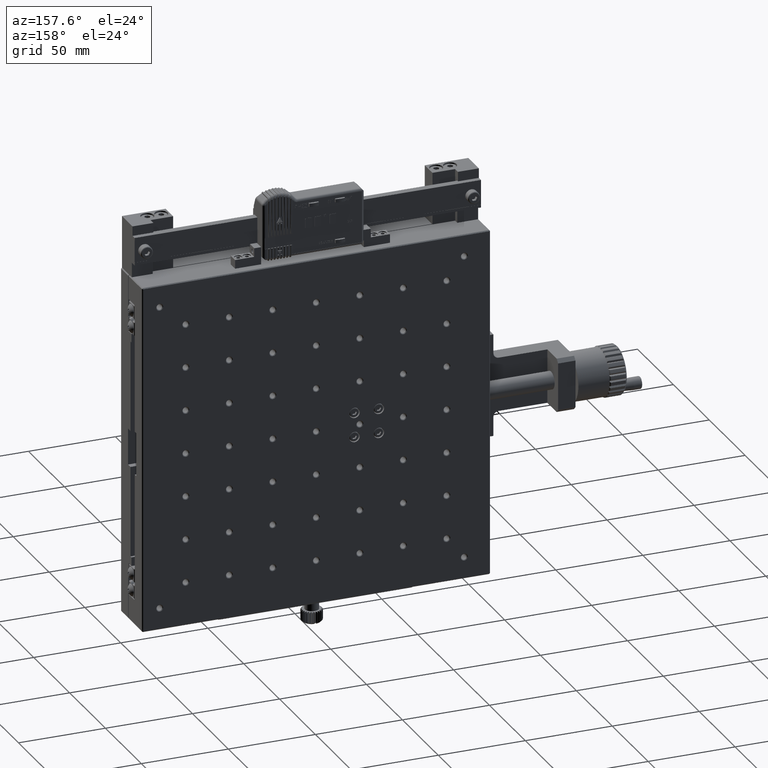
[diagram: clean part render]
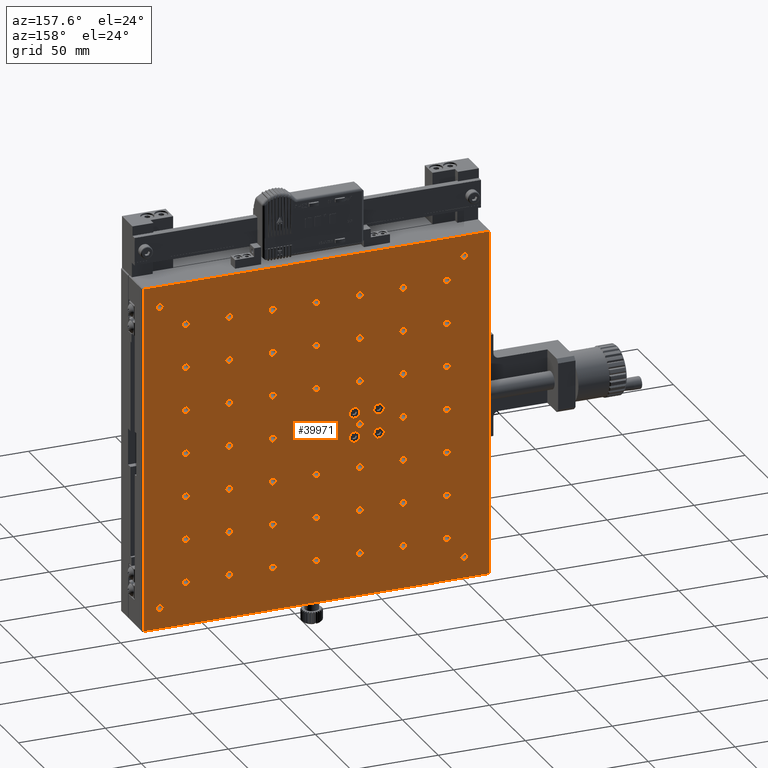
[diagram: same view with one face highlighted and labeled with its STEP entity id]
A machine part, auxiliary view. The second image highlights one B-rep face of the part: STEP entity #39971.
In plain terms, the highlighted planar face has unit normal (0, 1, 0).
Its self-contained STEP definition (entity closure, byte-faithful):
#132 = CIRCLE ( 'NONE', #12014, 1.999999999998183675 ) ;
#253 = DIRECTION ( 'NONE',  ( -0.000000000000000000, -1.000000000000000000, -0.000000000000000000 ) ) ;
#344 = CARTESIAN_POINT ( 'NONE',  ( -75.00000000000000000, 29.99999999994861355, -23.00000000002455636 ) ) ;
#822 = EDGE_CURVE ( 'NONE', #60979, #60979, #46265, .T. ) ;
#880 = CIRCLE ( 'NONE', #25637, 2.000000000009549694 ) ;
#925 = EDGE_LOOP ( 'NONE', ( #66756 ) ) ;
#945 = EDGE_LOOP ( 'NONE', ( #34316 ) ) ;
#1106 = VERTEX_POINT ( 'NONE', #42270 ) ;
#1182 = ORIENTED_EDGE ( 'NONE', *, *, #51280, .T. ) ;
#1224 = DIRECTION ( 'NONE',  ( 0.000000000000000000, 0.000000000000000000, 1.000000000000000000 ) ) ;
#1234 = CIRCLE ( 'NONE', #32500, 1.999999999998183675 ) ;
#1354 = CARTESIAN_POINT ( 'NONE',  ( -150.0000000000000000, 29.99999999994861355, 26.99999999992996891 ) ) ;
#1425 = EDGE_CURVE ( 'NONE', #29801, #29801, #35559, .T. ) ;
#1438 = EDGE_LOOP ( 'NONE', ( #41554 ) ) ;
#1450 = EDGE_LOOP ( 'NONE', ( #26154 ) ) ;
#1517 = DIRECTION ( 'NONE',  ( 0.000000000000000000, -1.000000000000000000, -0.000000000000000000 ) ) ;
#1879 = CARTESIAN_POINT ( 'NONE',  ( -25.00000000000000000, 29.99999999994861355, 76.99999999999818101 ) ) ;
#1882 = ORIENTED_EDGE ( 'NONE', *, *, #30237, .T. ) ;
#1943 = EDGE_LOOP ( 'NONE', ( #36453 ) ) ;
#1955 = CARTESIAN_POINT ( 'NONE',  ( -50.00000000000000000, 29.99999999994861355, -23.00000000002455636 ) ) ;
#2052 = CARTESIAN_POINT ( 'NONE',  ( -25.00000000000000000, 29.99999999994861355, 26.99999999992996891 ) ) ;
#2310 = EDGE_LOOP ( 'NONE', ( #52754 ) ) ;
#2528 = DIRECTION ( 'NONE',  ( 0.000000000000000000, -1.000000000000000000, -0.000000000000000000 ) ) ;
#2600 = ORIENTED_EDGE ( 'NONE', *, *, #29761, .T. ) ;
#2782 = CARTESIAN_POINT ( 'NONE',  ( -50.00000000000000000, 29.99999999994861355, 75.00000000000000000 ) ) ;
#3156 = VECTOR ( 'NONE', #42263, 1000.000000000000000 ) ;
#3259 = FACE_BOUND ( 'NONE', #54500, .T. ) ;
#3284 = ORIENTED_EDGE ( 'NONE', *, *, #6404, .T. ) ;
#3455 = CIRCLE ( 'NONE', #41167, 1.999999999929967576 ) ;
#3498 = DIRECTION ( 'NONE',  ( 0.000000000000000000, -1.000000000000000000, -0.000000000000000000 ) ) ;
#3517 = VERTEX_POINT ( 'NONE', #30489 ) ;
#3558 = DIRECTION ( 'NONE',  ( 0.000000000000000000, 0.000000000000000000, 1.000000000000000000 ) ) ;
#3573 = FACE_BOUND ( 'NONE', #62969, .T. ) ;
#3580 = ORIENTED_EDGE ( 'NONE', *, *, #30066, .T. ) ;
#3582 = CIRCLE ( 'NONE', #65044, 2.000000000020915714 ) ;
#3738 = CARTESIAN_POINT ( 'NONE',  ( -199.5000000000000000, 30.00000000000000000, -100.0000000000000000 ) ) ;
#3845 = CARTESIAN_POINT ( 'NONE',  ( -150.0000000000000000, 30.00000000000545697, 52.00000000002091838 ) ) ;
#3912 = FACE_BOUND ( 'NONE', #51014, .T. ) ;
#4224 = CARTESIAN_POINT ( 'NONE',  ( -75.00000000000000000, 29.99999999994861355, -25.00000000000000000 ) ) ;
#4243 = FACE_BOUND ( 'NONE', #54610, .T. ) ;
#4340 = AXIS2_PLACEMENT_3D ( 'NONE', #31908, #56922, #57923 ) ;
#4503 = VERTEX_POINT ( 'NONE', #25746 ) ;
#4518 = VERTEX_POINT ( 'NONE', #3845 ) ;
#4557 = DIRECTION ( 'NONE',  ( 0.000000000000000000, 0.000000000000000000, 1.000000000000000000 ) ) ;
#4769 = AXIS2_PLACEMENT_3D ( 'NONE', #11745, #253, #32303 ) ;
#4853 = EDGE_CURVE ( 'NONE', #7333, #7333, #36663, .T. ) ;
#4886 = CARTESIAN_POINT ( 'NONE',  ( -75.00000000000000000, 30.00000000006230039, 0.000000000000000000 ) ) ;
#5007 = VERTEX_POINT ( 'NONE', #9073 ) ;
#5040 = AXIS2_PLACEMENT_3D ( 'NONE', #37438, #15529, #21902 ) ;
#5077 = DIRECTION ( 'NONE',  ( 0.000000000000000000, -1.000000000000000000, -0.000000000000000000 ) ) ;
#5190 = CARTESIAN_POINT ( 'NONE',  ( -75.00000000000000000, 29.99999999994861355, -48.00000000005866241 ) ) ;
#5283 = DIRECTION ( 'NONE',  ( 0.000000000000000000, -1.000000000000000000, -0.000000000000000000 ) ) ;
#5370 = EDGE_CURVE ( 'NONE', #25487, #19955, #49989, .T. ) ;
#5424 = CARTESIAN_POINT ( 'NONE',  ( -10.00000000000000000, 29.99999999994861355, -87.50000000000001421 ) ) ;
#5783 = DIRECTION ( 'NONE',  ( 0.000000000000000000, 0.000000000000000000, 1.000000000000000000 ) ) ;
#5933 = EDGE_CURVE ( 'NONE', #36549, #36549, #41719, .T. ) ;
#6085 = DIRECTION ( 'NONE',  ( 0.000000000000000000, 0.000000000000000000, 1.000000000000000000 ) ) ;
#6122 = CIRCLE ( 'NONE', #23375, 3.000000000000000000 ) ;
#6404 = EDGE_CURVE ( 'NONE', #4503, #4503, #38341, .T. ) ;
#6425 = AXIS2_PLACEMENT_3D ( 'NONE', #65569, #59824, #34493 ) ;
#6935 = CIRCLE ( 'NONE', #15580, 1.999999999941340256 ) ;
#7040 = CIRCLE ( 'NONE', #10271, 1.999999999975444975 ) ;
#7056 = DIRECTION ( 'NONE',  ( 0.000000000000000000, 0.000000000000000000, 1.000000000000000000 ) ) ;
#7175 = VERTEX_POINT ( 'NONE', #63896 ) ;
#7198 = ORIENTED_EDGE ( 'NONE', *, *, #9297, .T. ) ;
#7333 = VERTEX_POINT ( 'NONE', #19370 ) ;
#7428 = CARTESIAN_POINT ( 'NONE',  ( -125.0000000000000000, 29.99999999994861355, -23.00000000002455636 ) ) ;
#7483 = AXIS2_PLACEMENT_3D ( 'NONE', #61669, #5283, #31919 ) ;
#7491 = DIRECTION ( 'NONE',  ( 0.000000000000000000, -1.000000000000000000, -0.000000000000000000 ) ) ;
#7603 = VERTEX_POINT ( 'NONE', #28177 ) ;
#7615 = DIRECTION ( 'NONE',  ( 0.000000000000000000, -1.000000000000000000, -0.000000000000000000 ) ) ;
#7951 = ORIENTED_EDGE ( 'NONE', *, *, #20838, .T. ) ;
#7990 = DIRECTION ( 'NONE',  ( 0.000000000000000000, -0.000000000000000000, 1.000000000000000000 ) ) ;
#8326 = FACE_BOUND ( 'NONE', #925, .T. ) ;
#8408 = CIRCLE ( 'NONE', #17034, 1.999999999998183675 ) ;
#8496 = ORIENTED_EDGE ( 'NONE', *, *, #50769, .T. ) ;
#8589 = ORIENTED_EDGE ( 'NONE', *, *, #60743, .T. ) ;
#8669 = FACE_BOUND ( 'NONE', #55783, .T. ) ;
#8719 = EDGE_LOOP ( 'NONE', ( #8589 ) ) ;
#8871 = AXIS2_PLACEMENT_3D ( 'NONE', #24727, #13284, #55443 ) ;
#8978 = FACE_BOUND ( 'NONE', #57966, .T. ) ;
#9073 = CARTESIAN_POINT ( 'NONE',  ( -75.00000000000000000, 29.99999999994861355, -73.00000000003592504 ) ) ;
#9242 = AXIS2_PLACEMENT_3D ( 'NONE', #5424, #19615, #19288 ) ;
#9282 = CARTESIAN_POINT ( 'NONE',  ( -50.00000000000000000, 30.00000000000545697, 50.00000000000000000 ) ) ;
#9295 = DIRECTION ( 'NONE',  ( 0.000000000000000000, -1.000000000000000000, -0.000000000000000000 ) ) ;
#9297 = EDGE_CURVE ( 'NONE', #12587, #12587, #880, .T. ) ;
#9314 = FACE_BOUND ( 'NONE', #58074, .T. ) ;
#9820 = CARTESIAN_POINT ( 'NONE',  ( -185.0000000000000000, 30.00000000006230039, 87.50000000000001421 ) ) ;
#9882 = EDGE_CURVE ( 'NONE', #7175, #7175, #56986, .T. ) ;
#10081 = CARTESIAN_POINT ( 'NONE',  ( -75.00000000000000000, 30.00000000006230039, 2.000000000009549694 ) ) ;
#10134 = DIRECTION ( 'NONE',  ( 0.000000000000000000, 0.000000000000000000, 1.000000000000000000 ) ) ;
#10255 = CARTESIAN_POINT ( 'NONE',  ( -136.0000000000000000, 30.00000000000000000, 10.00000000000000000 ) ) ;
#10271 = AXIS2_PLACEMENT_3D ( 'NONE', #4224, #9295, #4557 ) ;
#10292 = AXIS2_PLACEMENT_3D ( 'NONE', #53370, #58781, #37507 ) ;
#10310 = ORIENTED_EDGE ( 'NONE', *, *, #28196, .T. ) ;
#10404 = ORIENTED_EDGE ( 'NONE', *, *, #4853, .T. ) ;
#10415 = CARTESIAN_POINT ( 'NONE',  ( -175.0000000000000284, 29.99999999994861355, -73.00000000003592504 ) ) ;
#10460 = CARTESIAN_POINT ( 'NONE',  ( -125.0000000000000000, 29.99999999994861355, -25.00000000000000000 ) ) ;
#10629 = CIRCLE ( 'NONE', #13903, 2.000000000020915714 ) ;
#10637 = DIRECTION ( 'NONE',  ( 0.000000000000000000, 0.000000000000000000, 1.000000000000000000 ) ) ;
#10752 = ORIENTED_EDGE ( 'NONE', *, *, #11757, .T. ) ;
#10877 = CARTESIAN_POINT ( 'NONE',  ( -175.0000000000000284, 29.99999999994861355, -25.00000000000000000 ) ) ;
#10912 = EDGE_LOOP ( 'NONE', ( #25741 ) ) ;
#11030 = CIRCLE ( 'NONE', #51987, 2.000000000009549694 ) ;
#11125 = AXIS2_PLACEMENT_3D ( 'NONE', #57282, #27539, #21810 ) ;
#11223 = CIRCLE ( 'NONE', #46771, 1.999999999998183675 ) ;
#11251 = EDGE_LOOP ( 'NONE', ( #21263 ) ) ;
#11405 = AXIS2_PLACEMENT_3D ( 'NONE', #59759, #45218, #34086 ) ;
#11427 = CARTESIAN_POINT ( 'NONE',  ( -136.0000000000000000, 30.00000000000000000, 7.000000000000000000 ) ) ;
#11745 = CARTESIAN_POINT ( 'NONE',  ( -122.0000000000000000, 30.00000000000000000, -7.000000000000000000 ) ) ;
#11757 = EDGE_CURVE ( 'NONE', #1106, #1106, #10629, .T. ) ;
#12014 = AXIS2_PLACEMENT_3D ( 'NONE', #2782, #33146, #24007 ) ;
#12121 = AXIS2_PLACEMENT_3D ( 'NONE', #41430, #42431, #27235 ) ;
#12223 = DIRECTION ( 'NONE',  ( 0.000000000000000000, -1.000000000000000000, -0.000000000000000000 ) ) ;
#12297 = CARTESIAN_POINT ( 'NONE',  ( -75.00000000000000000, 29.99999999994861355, -50.00000000000000000 ) ) ;
#12587 = VERTEX_POINT ( 'NONE', #32136 ) ;
#12662 = EDGE_LOOP ( 'NONE', ( #66597 ) ) ;
#12670 = ORIENTED_EDGE ( 'NONE', *, *, #63753, .T. ) ;
#12680 = VERTEX_POINT ( 'NONE', #44031 ) ;
#12918 = CARTESIAN_POINT ( 'NONE',  ( -175.0000000000000284, 29.99999999994861355, -23.00000000002455636 ) ) ;
#12938 = ORIENTED_EDGE ( 'NONE', *, *, #14942, .T. ) ;
#13070 = DIRECTION ( 'NONE',  ( 0.000000000000000000, 1.000000000000000000, 0.000000000000000000 ) ) ;
#13284 = DIRECTION ( 'NONE',  ( 0.000000000000000000, -1.000000000000000000, -0.000000000000000000 ) ) ;
#13387 = FACE_BOUND ( 'NONE', #19852, .T. ) ;
#13397 = AXIS2_PLACEMENT_3D ( 'NONE', #50199, #40396, #34006 ) ;
#13505 = VECTOR ( 'NONE', #32603, 1000.000000000000000 ) ;
#13639 = DIRECTION ( 'NONE',  ( 0.000000000000000000, 0.000000000000000000, 1.000000000000000000 ) ) ;
#13659 = VERTEX_POINT ( 'NONE', #39967 ) ;
#13662 = CIRCLE ( 'NONE', #43858, 3.000000000000000000 ) ;
#13665 = CARTESIAN_POINT ( 'NONE',  ( -25.00000000000000000, 29.99999999994861355, 75.00000000000000000 ) ) ;
#13719 = FACE_BOUND ( 'NONE', #1450, .T. ) ;
#13742 = VERTEX_POINT ( 'NONE', #48196 ) ;
#13771 = DIRECTION ( 'NONE',  ( 0.000000000000000000, 0.000000000000000000, 1.000000000000000000 ) ) ;
#13814 = EDGE_CURVE ( 'NONE', #19283, #19283, #61979, .T. ) ;
#13903 = AXIS2_PLACEMENT_3D ( 'NONE', #32024, #62773, #21242 ) ;
#14048 = FACE_BOUND ( 'NONE', #945, .T. ) ;
#14139 = VERTEX_POINT ( 'NONE', #10081 ) ;
#14220 = VERTEX_POINT ( 'NONE', #56399 ) ;
#14267 = DIRECTION ( 'NONE',  ( 0.000000000000000000, -1.000000000000000000, -0.000000000000000000 ) ) ;
#14335 = DIRECTION ( 'NONE',  ( 0.000000000000000000, 0.000000000000000000, 1.000000000000000000 ) ) ;
#14353 = AXIS2_PLACEMENT_3D ( 'NONE', #13665, #18066, #29170 ) ;
#14371 = FACE_BOUND ( 'NONE', #34083, .T. ) ;
#14376 = VECTOR ( 'NONE', #44920, 1000.000000000000000 ) ;
#14520 = EDGE_CURVE ( 'NONE', #43939, #43939, #56684, .T. ) ;
#14716 = CIRCLE ( 'NONE', #61070, 1.999999999964072295 ) ;
#14746 = CARTESIAN_POINT ( 'NONE',  ( -100.0000000000000000, 30.00000000006230039, 2.000000000009549694 ) ) ;
#14875 = DIRECTION ( 'NONE',  ( 0.000000000000000000, 0.000000000000000000, 1.000000000000000000 ) ) ;
#14942 = EDGE_CURVE ( 'NONE', #59150, #59150, #55660, .T. ) ;
#14945 = DIRECTION ( 'NONE',  ( 0.000000000000000000, -1.000000000000000000, -0.000000000000000000 ) ) ;
#15142 = AXIS2_PLACEMENT_3D ( 'NONE', #10460, #19246, #30359 ) ;
#15202 = CARTESIAN_POINT ( 'NONE',  ( -150.0000000000000000, 29.99999999994861355, -25.00000000000000000 ) ) ;
#15428 = CARTESIAN_POINT ( 'NONE',  ( -175.0000000000000284, 29.99999999994861355, 75.00000000000000000 ) ) ;
#15529 = DIRECTION ( 'NONE',  ( 0.000000000000000000, -1.000000000000000000, -0.000000000000000000 ) ) ;
#15560 = AXIS2_PLACEMENT_3D ( 'NONE', #43688, #65635, #19376 ) ;
#15580 = AXIS2_PLACEMENT_3D ( 'NONE', #19682, #29466, #39954 ) ;
#15629 = EDGE_CURVE ( 'NONE', #65212, #65212, #46936, .T. ) ;
#15716 = EDGE_CURVE ( 'NONE', #60138, #60138, #7040, .T. ) ;
#15725 = EDGE_LOOP ( 'NONE', ( #43609 ) ) ;
#15731 = EDGE_CURVE ( 'NONE', #14220, #14220, #45816, .T. ) ;
#15805 = EDGE_LOOP ( 'NONE', ( #65719 ) ) ;
#15933 = EDGE_LOOP ( 'NONE', ( #27019 ) ) ;
#15945 = DIRECTION ( 'NONE',  ( 0.000000000000000000, 0.000000000000000000, 1.000000000000000000 ) ) ;
#15974 = LINE ( 'NONE', #52066, #3156 ) ;
#16026 = DIRECTION ( 'NONE',  ( 0.000000000000000000, -1.000000000000000000, -0.000000000000000000 ) ) ;
#16159 = DIRECTION ( 'NONE',  ( 0.000000000000000000, 0.000000000000000000, 1.000000000000000000 ) ) ;
#16412 = ORIENTED_EDGE ( 'NONE', *, *, #14520, .T. ) ;
#16498 = ORIENTED_EDGE ( 'NONE', *, *, #31793, .T. ) ;
#16571 = DIRECTION ( 'NONE',  ( -0.000000000000000000, -1.000000000000000000, -0.000000000000000000 ) ) ;
#16649 = ORIENTED_EDGE ( 'NONE', *, *, #50034, .T. ) ;
#16688 = EDGE_LOOP ( 'NONE', ( #38549 ) ) ;
#16823 = ORIENTED_EDGE ( 'NONE', *, *, #13814, .T. ) ;
#17034 = AXIS2_PLACEMENT_3D ( 'NONE', #20649, #61515, #15945 ) ;
#17140 = FACE_OUTER_BOUND ( 'NONE', #56672, .T. ) ;
#17304 = DIRECTION ( 'NONE',  ( 0.000000000000000000, 0.000000000000000000, 1.000000000000000000 ) ) ;
#17579 = CARTESIAN_POINT ( 'NONE',  ( -175.0000000000000284, 30.00000000006230039, 2.000000000009549694 ) ) ;
#17672 = ORIENTED_EDGE ( 'NONE', *, *, #55860, .T. ) ;
#17851 = AXIS2_PLACEMENT_3D ( 'NONE', #44073, #43739, #3558 ) ;
#17869 = CIRCLE ( 'NONE', #10292, 1.999999999929967576 ) ;
#18061 = CARTESIAN_POINT ( 'NONE',  ( -25.00000000000000000, 30.00000000000545697, 52.00000000002091838 ) ) ;
#18066 = DIRECTION ( 'NONE',  ( 0.000000000000000000, -1.000000000000000000, -0.000000000000000000 ) ) ;
#18117 = FACE_BOUND ( 'NONE', #24877, .T. ) ;
#18121 = EDGE_LOOP ( 'NONE', ( #7198 ) ) ;
#18132 = EDGE_LOOP ( 'NONE', ( #17672 ) ) ;
#18225 = AXIS2_PLACEMENT_3D ( 'NONE', #36689, #46823, #42410 ) ;
#18300 = EDGE_CURVE ( 'NONE', #66213, #66213, #8408, .T. ) ;
#18457 = FACE_BOUND ( 'NONE', #52717, .T. ) ;
#18610 = DIRECTION ( 'NONE',  ( 0.000000000000000000, 0.000000000000000000, 1.000000000000000000 ) ) ;
#18733 = CIRCLE ( 'NONE', #42427, 2.000000000020915714 ) ;
#18783 = FACE_BOUND ( 'NONE', #38906, .T. ) ;
#18787 = CIRCLE ( 'NONE', #15560, 1.999999999964072295 ) ;
#18875 = VERTEX_POINT ( 'NONE', #7428 ) ;
#18883 = EDGE_LOOP ( 'NONE', ( #36302 ) ) ;
#18899 = AXIS2_PLACEMENT_3D ( 'NONE', #57786, #56207, #34928 ) ;
#18955 = CARTESIAN_POINT ( 'NONE',  ( -50.00000000000000000, 30.00000000000545697, 52.00000000002091838 ) ) ;
#19111 = FACE_BOUND ( 'NONE', #56216, .T. ) ;
#19246 = DIRECTION ( 'NONE',  ( 0.000000000000000000, -1.000000000000000000, -0.000000000000000000 ) ) ;
#19283 = VERTEX_POINT ( 'NONE', #48688 ) ;
#19288 = DIRECTION ( 'NONE',  ( 0.000000000000000000, 0.000000000000000000, 1.000000000000000000 ) ) ;
#19370 = CARTESIAN_POINT ( 'NONE',  ( -150.0000000000000000, 30.00000000006230039, 2.000000000009549694 ) ) ;
#19376 = DIRECTION ( 'NONE',  ( 0.000000000000000000, 0.000000000000000000, 1.000000000000000000 ) ) ;
#19439 = FACE_BOUND ( 'NONE', #27027, .T. ) ;
#19601 = DIRECTION ( 'NONE',  ( 0.000000000000000000, -1.000000000000000000, -0.000000000000000000 ) ) ;
#19612 = VERTEX_POINT ( 'NONE', #1354 ) ;
#19614 = EDGE_LOOP ( 'NONE', ( #20941 ) ) ;
#19615 = DIRECTION ( 'NONE',  ( 0.000000000000000000, -1.000000000000000000, -0.000000000000000000 ) ) ;
#19682 = CARTESIAN_POINT ( 'NONE',  ( -50.00000000000000000, 29.99999999994861355, -50.00000000000000000 ) ) ;
#19727 = DIRECTION ( 'NONE',  ( 0.000000000000000000, -1.000000000000000000, -0.000000000000000000 ) ) ;
#19779 = EDGE_LOOP ( 'NONE', ( #65218 ) ) ;
#19852 = EDGE_LOOP ( 'NONE', ( #10310 ) ) ;
#19955 = VERTEX_POINT ( 'NONE', #45005 ) ;
#19981 = CARTESIAN_POINT ( 'NONE',  ( -199.5000000000000000, 30.00000000000000000, -99.50000000000000000 ) ) ;
#20046 = EDGE_CURVE ( 'NONE', #51331, #51331, #6935, .T. ) ;
#20274 = ORIENTED_EDGE ( 'NONE', *, *, #18300, .T. ) ;
#20318 = CIRCLE ( 'NONE', #59184, 3.000000000000000000 ) ;
#20477 = CARTESIAN_POINT ( 'NONE',  ( -0.4999999999999848455, 30.00000000000000000, -99.50000000000001421 ) ) ;
#20501 = CARTESIAN_POINT ( 'NONE',  ( -150.0000000000000000, 29.99999999994861355, 25.00000000000000000 ) ) ;
#20537 = VERTEX_POINT ( 'NONE', #41116 ) ;
#20649 = CARTESIAN_POINT ( 'NONE',  ( -125.0000000000000000, 29.99999999994861355, 75.00000000000000000 ) ) ;
#20740 = DIRECTION ( 'NONE',  ( 0.000000000000000000, -1.000000000000000000, -0.000000000000000000 ) ) ;
#20766 = EDGE_CURVE ( 'NONE', #19612, #19612, #66321, .T. ) ;
#20838 = EDGE_CURVE ( 'NONE', #48326, #25487, #52886, .T. ) ;
#20941 = ORIENTED_EDGE ( 'NONE', *, *, #1425, .T. ) ;
#21020 = ORIENTED_EDGE ( 'NONE', *, *, #31923, .T. ) ;
#21162 = EDGE_CURVE ( 'NONE', #21610, #21610, #52279, .T. ) ;
#21242 = DIRECTION ( 'NONE',  ( 0.000000000000000000, 0.000000000000000000, 1.000000000000000000 ) ) ;
#21263 = ORIENTED_EDGE ( 'NONE', *, *, #31737, .T. ) ;
#21280 = ORIENTED_EDGE ( 'NONE', *, *, #15731, .T. ) ;
#21358 = EDGE_LOOP ( 'NONE', ( #29253 ) ) ;
#21610 = VERTEX_POINT ( 'NONE', #32724 ) ;
#21646 = EDGE_CURVE ( 'NONE', #63145, #63145, #52323, .T. ) ;
#21737 = CARTESIAN_POINT ( 'NONE',  ( -175.0000000000000284, 30.00000000006230039, 0.000000000000000000 ) ) ;
#21810 = DIRECTION ( 'NONE',  ( 0.000000000000000000, 0.000000000000000000, 1.000000000000000000 ) ) ;
#21902 = DIRECTION ( 'NONE',  ( 0.000000000000000000, 0.000000000000000000, 1.000000000000000000 ) ) ;
#21935 = CARTESIAN_POINT ( 'NONE',  ( -100.0000000000000000, 29.99999999994861355, 26.99999999992996891 ) ) ;
#22342 = EDGE_LOOP ( 'NONE', ( #28570 ) ) ;
#22485 = CARTESIAN_POINT ( 'NONE',  ( -0.4999999999999690248, 30.00000000000000000, 99.50000000000000000 ) ) ;
#22786 = VERTEX_POINT ( 'NONE', #1879 ) ;
#22820 = CARTESIAN_POINT ( 'NONE',  ( -200.0000000000000000, 30.00000000000000000, -99.50000000000000000 ) ) ;
#23069 = AXIS2_PLACEMENT_3D ( 'NONE', #38043, #54582, #23500 ) ;
#23154 = AXIS2_PLACEMENT_3D ( 'NONE', #30196, #20740, #10637 ) ;
#23283 = CIRCLE ( 'NONE', #62144, 2.000000000020915714 ) ;
#23375 = AXIS2_PLACEMENT_3D ( 'NONE', #27336, #16571, #6085 ) ;
#23500 = DIRECTION ( 'NONE',  ( 0.000000000000000000, 0.000000000000000000, 1.000000000000000000 ) ) ;
#23827 = FACE_BOUND ( 'NONE', #32984, .T. ) ;
#24007 = DIRECTION ( 'NONE',  ( 0.000000000000000000, 0.000000000000000000, 1.000000000000000000 ) ) ;
#24090 = CARTESIAN_POINT ( 'NONE',  ( -75.00000000000000000, 29.99999999994861355, 25.00000000000000000 ) ) ;
#24101 = CIRCLE ( 'NONE', #35954, 1.999999999929967576 ) ;
#24124 = DIRECTION ( 'NONE',  ( -0.000000000000000000, -1.000000000000000000, -0.000000000000000000 ) ) ;
#24155 = FACE_BOUND ( 'NONE', #59977, .T. ) ;
#24493 = FACE_BOUND ( 'NONE', #53428, .T. ) ;
#24593 = CARTESIAN_POINT ( 'NONE',  ( -75.00000000000000000, 30.00000000000545697, 52.00000000002091838 ) ) ;
#24727 = CARTESIAN_POINT ( 'NONE',  ( -175.0000000000000284, 29.99999999994861355, -75.00000000000000000 ) ) ;
#24845 = VERTEX_POINT ( 'NONE', #61312 ) ;
#24877 = EDGE_LOOP ( 'NONE', ( #24913 ) ) ;
#24913 = ORIENTED_EDGE ( 'NONE', *, *, #36568, .T. ) ;
#25062 = EDGE_CURVE ( 'NONE', #63824, #63824, #20318, .T. ) ;
#25243 = ORIENTED_EDGE ( 'NONE', *, *, #5933, .T. ) ;
#25480 = EDGE_LOOP ( 'NONE', ( #12938 ) ) ;
#25487 = VERTEX_POINT ( 'NONE', #19981 ) ;
#25529 = DIRECTION ( 'NONE',  ( 0.000000000000000000, -1.000000000000000000, -0.000000000000000000 ) ) ;
#25580 = VERTEX_POINT ( 'NONE', #61048 ) ;
#25637 = AXIS2_PLACEMENT_3D ( 'NONE', #66261, #14945, #51045 ) ;
#25679 = DIRECTION ( 'NONE',  ( 0.000000000000000000, -1.000000000000000000, -0.000000000000000000 ) ) ;
#25741 = ORIENTED_EDGE ( 'NONE', *, *, #54578, .T. ) ;
#25746 = CARTESIAN_POINT ( 'NONE',  ( -10.00000000000000000, 29.99999999994861355, -85.50000000002455636 ) ) ;
#25983 = AXIS2_PLACEMENT_3D ( 'NONE', #66084, #49884, #44158 ) ;
#26154 = ORIENTED_EDGE ( 'NONE', *, *, #28590, .T. ) ;
#26320 = EDGE_CURVE ( 'NONE', #59074, #59074, #52719, .T. ) ;
#26445 = EDGE_LOOP ( 'NONE', ( #36133 ) ) ;
#26936 = EDGE_CURVE ( 'NONE', #19955, #58734, #36112, .T. ) ;
#27019 = ORIENTED_EDGE ( 'NONE', *, *, #43718, .T. ) ;
#27027 = EDGE_LOOP ( 'NONE', ( #16823 ) ) ;
#27040 = DIRECTION ( 'NONE',  ( 0.000000000000000000, -1.000000000000000000, -0.000000000000000000 ) ) ;
#27235 = DIRECTION ( 'NONE',  ( 0.000000000000000000, 0.000000000000000000, 1.000000000000000000 ) ) ;
#27329 = EDGE_LOOP ( 'NONE', ( #66387 ) ) ;
#27336 = CARTESIAN_POINT ( 'NONE',  ( -136.0000000000000000, 30.00000000000000000, -7.000000000000000000 ) ) ;
#27539 = DIRECTION ( 'NONE',  ( 0.000000000000000000, -1.000000000000000000, -0.000000000000000000 ) ) ;
#27853 = CARTESIAN_POINT ( 'NONE',  ( -100.0000000000000000, 29.99999999994861355, 76.99999999999818101 ) ) ;
#27929 = VERTEX_POINT ( 'NONE', #1955 ) ;
#28006 = CARTESIAN_POINT ( 'NONE',  ( -25.00000000000000000, 29.99999999994861355, -48.00000000005866241 ) ) ;
#28177 = CARTESIAN_POINT ( 'NONE',  ( -150.0000000000000000, 29.99999999994861355, -73.00000000003592504 ) ) ;
#28196 = EDGE_CURVE ( 'NONE', #18875, #18875, #55036, .T. ) ;
#28570 = ORIENTED_EDGE ( 'NONE', *, *, #40272, .T. ) ;
#28590 = EDGE_CURVE ( 'NONE', #48611, #48611, #41051, .T. ) ;
#28833 = VERTEX_POINT ( 'NONE', #18061 ) ;
#28884 = EDGE_LOOP ( 'NONE', ( #16412 ) ) ;
#28894 = FACE_BOUND ( 'NONE', #28884, .T. ) ;
#29170 = DIRECTION ( 'NONE',  ( 0.000000000000000000, 0.000000000000000000, 1.000000000000000000 ) ) ;
#29221 = FACE_BOUND ( 'NONE', #15933, .T. ) ;
#29235 = EDGE_LOOP ( 'NONE', ( #39377 ) ) ;
#29253 = ORIENTED_EDGE ( 'NONE', *, *, #52554, .T. ) ;
#29268 = DIRECTION ( 'NONE',  ( 0.000000000000000000, -1.000000000000000000, -0.000000000000000000 ) ) ;
#29279 = CARTESIAN_POINT ( 'NONE',  ( -100.0000000000000000, 29.99999999994861355, 75.00000000000000000 ) ) ;
#29466 = DIRECTION ( 'NONE',  ( 0.000000000000000000, -1.000000000000000000, -0.000000000000000000 ) ) ;
#29546 = FACE_BOUND ( 'NONE', #18883, .T. ) ;
#29621 = AXIS2_PLACEMENT_3D ( 'NONE', #9820, #19601, #55718 ) ;
#29761 = EDGE_CURVE ( 'NONE', #14139, #14139, #11030, .T. ) ;
#29801 = VERTEX_POINT ( 'NONE', #53918 ) ;
#29879 = FACE_BOUND ( 'NONE', #18121, .T. ) ;
#29946 = DIRECTION ( 'NONE',  ( 0.000000000000000000, -1.000000000000000000, -0.000000000000000000 ) ) ;
#30013 = AXIS2_PLACEMENT_3D ( 'NONE', #15202, #35762, #10134 ) ;
#30066 = EDGE_CURVE ( 'NONE', #45513, #45513, #45519, .T. ) ;
#30196 = CARTESIAN_POINT ( 'NONE',  ( -100.0000000000000000, 29.99999999994861355, -25.00000000000000000 ) ) ;
#30237 = EDGE_CURVE ( 'NONE', #66126, #66126, #62836, .T. ) ;
#30359 = DIRECTION ( 'NONE',  ( 0.000000000000000000, 0.000000000000000000, 1.000000000000000000 ) ) ;
#30439 = CARTESIAN_POINT ( 'NONE',  ( -25.00000000000000000, 29.99999999994861355, -75.00000000000000000 ) ) ;
#30489 = CARTESIAN_POINT ( 'NONE',  ( -125.0000000000000000, 29.99999999994861355, 26.99999999992996891 ) ) ;
#30513 = ORIENTED_EDGE ( 'NONE', *, *, #53488, .T. ) ;
#30545 = ORIENTED_EDGE ( 'NONE', *, *, #61280, .T. ) ;
#30550 = EDGE_LOOP ( 'NONE', ( #63225 ) ) ;
#30818 = VERTEX_POINT ( 'NONE', #32739 ) ;
#31161 = VERTEX_POINT ( 'NONE', #5190 ) ;
#31373 = EDGE_LOOP ( 'NONE', ( #16649 ) ) ;
#31406 = EDGE_CURVE ( 'NONE', #55308, #55308, #18733, .T. ) ;
#31486 = VERTEX_POINT ( 'NONE', #38153 ) ;
#31532 = AXIS2_PLACEMENT_3D ( 'NONE', #37861, #12223, #32781 ) ;
#31620 = CIRCLE ( 'NONE', #36011, 1.999999999964072295 ) ;
#31719 = EDGE_LOOP ( 'NONE', ( #34633 ) ) ;
#31737 = EDGE_CURVE ( 'NONE', #5007, #5007, #31620, .T. ) ;
#31793 = EDGE_CURVE ( 'NONE', #25580, #25580, #52170, .T. ) ;
#31888 = AXIS2_PLACEMENT_3D ( 'NONE', #9282, #19727, #51459 ) ;
#31894 = AXIS2_PLACEMENT_3D ( 'NONE', #64380, #13070, #7990 ) ;
#31908 = CARTESIAN_POINT ( 'NONE',  ( -150.0000000000000000, 30.00000000006230039, 0.000000000000000000 ) ) ;
#31919 = DIRECTION ( 'NONE',  ( 0.000000000000000000, 0.000000000000000000, 1.000000000000000000 ) ) ;
#31923 = EDGE_CURVE ( 'NONE', #20537, #20537, #11223, .T. ) ;
#32024 = CARTESIAN_POINT ( 'NONE',  ( -175.0000000000000284, 30.00000000000545697, 50.00000000000000000 ) ) ;
#32058 = EDGE_CURVE ( 'NONE', #44847, #44847, #53237, .T. ) ;
#32136 = CARTESIAN_POINT ( 'NONE',  ( -25.00000000000000000, 30.00000000006230039, 2.000000000009549694 ) ) ;
#32303 = DIRECTION ( 'NONE',  ( 0.000000000000000000, 0.000000000000000000, 1.000000000000000000 ) ) ;
#32447 = CIRCLE ( 'NONE', #25983, 2.000000000020915714 ) ;
#32500 = AXIS2_PLACEMENT_3D ( 'NONE', #29279, #39428, #44810 ) ;
#32603 = DIRECTION ( 'NONE',  ( -1.000000000000000000, -0.000000000000000000, 0.000000000000000000 ) ) ;
#32713 = EDGE_LOOP ( 'NONE', ( #1882 ) ) ;
#32724 = CARTESIAN_POINT ( 'NONE',  ( -100.0000000000000000, 29.99999999994861355, -23.00000000002455636 ) ) ;
#32739 = CARTESIAN_POINT ( 'NONE',  ( -50.00000000000000000, 30.00000000006230039, 2.000000000009549694 ) ) ;
#32748 = AXIS2_PLACEMENT_3D ( 'NONE', #59273, #32926, #1224 ) ;
#32781 = DIRECTION ( 'NONE',  ( 0.000000000000000000, 0.000000000000000000, 1.000000000000000000 ) ) ;
#32926 = DIRECTION ( 'NONE',  ( 0.000000000000000000, -1.000000000000000000, -0.000000000000000000 ) ) ;
#32984 = EDGE_LOOP ( 'NONE', ( #21280 ) ) ;
#33146 = DIRECTION ( 'NONE',  ( 0.000000000000000000, -1.000000000000000000, -0.000000000000000000 ) ) ;
#33174 = AXIS2_PLACEMENT_3D ( 'NONE', #65533, #1517, #18610 ) ;
#33623 = FACE_BOUND ( 'NONE', #56997, .T. ) ;
#33950 = FACE_BOUND ( 'NONE', #48807, .T. ) ;
#34004 = EDGE_CURVE ( 'NONE', #36373, #36373, #18787, .T. ) ;
#34006 = DIRECTION ( 'NONE',  ( 0.000000000000000000, 0.000000000000000000, 1.000000000000000000 ) ) ;
#34083 = EDGE_LOOP ( 'NONE', ( #3284 ) ) ;
#34086 = DIRECTION ( 'NONE',  ( 0.000000000000000000, 0.000000000000000000, 1.000000000000000000 ) ) ;
#34267 = CIRCLE ( 'NONE', #33174, 1.999999999975444975 ) ;
#34284 = FACE_BOUND ( 'NONE', #55993, .T. ) ;
#34316 = ORIENTED_EDGE ( 'NONE', *, *, #59135, .T. ) ;
#34493 = DIRECTION ( 'NONE',  ( 0.000000000000000000, 0.000000000000000000, 1.000000000000000000 ) ) ;
#34617 = FACE_BOUND ( 'NONE', #2310, .T. ) ;
#34633 = ORIENTED_EDGE ( 'NONE', *, *, #9882, .T. ) ;
#34785 = CARTESIAN_POINT ( 'NONE',  ( -125.0000000000000000, 29.99999999994861355, 76.99999999999818101 ) ) ;
#34928 = DIRECTION ( 'NONE',  ( 0.000000000000000000, 0.000000000000000000, 1.000000000000000000 ) ) ;
#34946 = FACE_BOUND ( 'NONE', #18132, .T. ) ;
#35108 = CARTESIAN_POINT ( 'NONE',  ( -150.0000000000000000, 30.00000000000545697, 50.00000000000000000 ) ) ;
#35128 = CIRCLE ( 'NONE', #52401, 2.000000000009549694 ) ;
#35149 = EDGE_LOOP ( 'NONE', ( #10404 ) ) ;
#35559 = CIRCLE ( 'NONE', #43084, 1.999999999998183675 ) ;
#35762 = DIRECTION ( 'NONE',  ( 0.000000000000000000, -1.000000000000000000, -0.000000000000000000 ) ) ;
#35773 = DIRECTION ( 'NONE',  ( 0.000000000000000000, -1.000000000000000000, -0.000000000000000000 ) ) ;
#35954 = AXIS2_PLACEMENT_3D ( 'NONE', #43373, #7615, #53178 ) ;
#36011 = AXIS2_PLACEMENT_3D ( 'NONE', #60012, #29268, #13771 ) ;
#36112 = LINE ( 'NONE', #51983, #66815 ) ;
#36133 = ORIENTED_EDGE ( 'NONE', *, *, #15629, .T. ) ;
#36302 = ORIENTED_EDGE ( 'NONE', *, *, #50888, .T. ) ;
#36373 = VERTEX_POINT ( 'NONE', #47522 ) ;
#36453 = ORIENTED_EDGE ( 'NONE', *, *, #48997, .T. ) ;
#36549 = VERTEX_POINT ( 'NONE', #41266 ) ;
#36568 = EDGE_CURVE ( 'NONE', #64068, #64068, #62160, .T. ) ;
#36663 = CIRCLE ( 'NONE', #4340, 2.000000000009549694 ) ;
#36689 = CARTESIAN_POINT ( 'NONE',  ( -125.0000000000000000, 29.99999999994861355, -50.00000000000000000 ) ) ;
#37166 = ORIENTED_EDGE ( 'NONE', *, *, #53596, .T. ) ;
#37398 = DIRECTION ( 'NONE',  ( -0.000000000000000000, -1.000000000000000000, -0.000000000000000000 ) ) ;
#37438 = CARTESIAN_POINT ( 'NONE',  ( -150.0000000000000000, 29.99999999994861355, 75.00000000000000000 ) ) ;
#37507 = DIRECTION ( 'NONE',  ( 0.000000000000000000, 0.000000000000000000, 1.000000000000000000 ) ) ;
#37612 = DIRECTION ( 'NONE',  ( 0.000000000000000000, -1.000000000000000000, -0.000000000000000000 ) ) ;
#37861 = CARTESIAN_POINT ( 'NONE',  ( -75.00000000000000000, 30.00000000000545697, 50.00000000000000000 ) ) ;
#37938 = DIRECTION ( 'NONE',  ( 0.000000000000000000, -1.000000000000000000, -0.000000000000000000 ) ) ;
#37946 = EDGE_CURVE ( 'NONE', #27929, #27929, #34267, .T. ) ;
#38043 = CARTESIAN_POINT ( 'NONE',  ( -175.0000000000000284, 29.99999999994861355, -50.00000000000000000 ) ) ;
#38153 = CARTESIAN_POINT ( 'NONE',  ( -25.00000000000000000, 29.99999999994861355, -73.00000000003592504 ) ) ;
#38341 = CIRCLE ( 'NONE', #9242, 1.999999999975452081 ) ;
#38405 = AXIS2_PLACEMENT_3D ( 'NONE', #43174, #53306, #7056 ) ;
#38549 = ORIENTED_EDGE ( 'NONE', *, *, #20046, .T. ) ;
#38705 = FACE_BOUND ( 'NONE', #26445, .T. ) ;
#38756 = AXIS2_PLACEMENT_3D ( 'NONE', #60772, #35773, #14875 ) ;
#38906 = EDGE_LOOP ( 'NONE', ( #47369 ) ) ;
#38982 = VERTEX_POINT ( 'NONE', #27853 ) ;
#39040 = FACE_BOUND ( 'NONE', #32713, .T. ) ;
#39056 = CARTESIAN_POINT ( 'NONE',  ( -150.0000000000000000, 29.99999999994861355, 76.99999999999818101 ) ) ;
#39130 = CARTESIAN_POINT ( 'NONE',  ( -122.0000000000000000, 30.00000000000000000, 10.00000000000000000 ) ) ;
#39268 = CIRCLE ( 'NONE', #4769, 3.000000000000000000 ) ;
#39363 = FACE_BOUND ( 'NONE', #35149, .T. ) ;
#39377 = ORIENTED_EDGE ( 'NONE', *, *, #58417, .T. ) ;
#39428 = DIRECTION ( 'NONE',  ( 0.000000000000000000, -1.000000000000000000, -0.000000000000000000 ) ) ;
#39543 = CARTESIAN_POINT ( 'NONE',  ( -10.00000000000000000, 30.00000000006230039, 89.49999999992996891 ) ) ;
#39587 = ORIENTED_EDGE ( 'NONE', *, *, #15716, .T. ) ;
#39693 = FACE_BOUND ( 'NONE', #57259, .T. ) ;
#39954 = DIRECTION ( 'NONE',  ( 0.000000000000000000, 0.000000000000000000, 1.000000000000000000 ) ) ;
#39967 = CARTESIAN_POINT ( 'NONE',  ( -50.00000000000000000, 29.99999999994861355, 26.99999999992996891 ) ) ;
#39971 = ADVANCED_FACE ( 'NONE', ( #17140, #53229, #8326, #39363, #18783, #64713, #19111, #44748, #60286, #23827, #29879, #45081, #59628, #13387, #54571, #34617, #49829, #50485, #18457, #34284, #33950, #28894, #39040, #18117, #24493, #44420, #54904, #49502, #50152, #34946, #3259, #55218, #40023, #39693, #59312, #3573, #65035, #59958, #33623, #65706, #54233, #13719, #65366, #14048, #29221, #8978, #29546, #8669, #24155, #3912, #38705, #19439, #60617, #14371, #55546, #9314, #44089, #4243 ), #43757, .T. ) ;
#40023 = FACE_BOUND ( 'NONE', #15805, .T. ) ;
#40272 = EDGE_CURVE ( 'NONE', #13742, #13742, #23283, .T. ) ;
#40359 = CIRCLE ( 'NONE', #11125, 1.999999999952706276 ) ;
#40396 = DIRECTION ( 'NONE',  ( 0.000000000000000000, -1.000000000000000000, -0.000000000000000000 ) ) ;
#40483 = CIRCLE ( 'NONE', #11405, 2.000000000009549694 ) ;
#40876 = CIRCLE ( 'NONE', #6425, 1.999999999941340256 ) ;
#41048 = EDGE_CURVE ( 'NONE', #43124, #43124, #6122, .T. ) ;
#41051 = CIRCLE ( 'NONE', #65888, 1.999999999941340256 ) ;
#41116 = CARTESIAN_POINT ( 'NONE',  ( -175.0000000000000284, 29.99999999994861355, 76.99999999999818101 ) ) ;
#41167 = AXIS2_PLACEMENT_3D ( 'NONE', #66093, #29946, #61015 ) ;
#41173 = AXIS2_PLACEMENT_3D ( 'NONE', #59842, #49387, #44307 ) ;
#41266 = CARTESIAN_POINT ( 'NONE',  ( -75.00000000000000000, 29.99999999994861355, 26.99999999992996891 ) ) ;
#41430 = CARTESIAN_POINT ( 'NONE',  ( -25.00000000000000000, 29.99999999994861355, -25.00000000000000000 ) ) ;
#41492 = CIRCLE ( 'NONE', #48125, 1.999999999964072295 ) ;
#41554 = ORIENTED_EDGE ( 'NONE', *, *, #45175, .T. ) ;
#41719 = CIRCLE ( 'NONE', #64401, 1.999999999929967576 ) ;
#42263 = DIRECTION ( 'NONE',  ( -0.000000000000000000, 0.000000000000000000, -1.000000000000000000 ) ) ;
#42270 = CARTESIAN_POINT ( 'NONE',  ( -175.0000000000000284, 30.00000000000545697, 52.00000000002091838 ) ) ;
#42301 = CIRCLE ( 'NONE', #12121, 1.999999999975444975 ) ;
#42410 = DIRECTION ( 'NONE',  ( 0.000000000000000000, 0.000000000000000000, 1.000000000000000000 ) ) ;
#42427 = AXIS2_PLACEMENT_3D ( 'NONE', #58808, #7491, #17304 ) ;
#42431 = DIRECTION ( 'NONE',  ( 0.000000000000000000, -1.000000000000000000, -0.000000000000000000 ) ) ;
#42435 = ORIENTED_EDGE ( 'NONE', *, *, #26320, .T. ) ;
#43084 = AXIS2_PLACEMENT_3D ( 'NONE', #54491, #3498, #13639 ) ;
#43124 = VERTEX_POINT ( 'NONE', #63747 ) ;
#43174 = CARTESIAN_POINT ( 'NONE',  ( -100.0000000000000000, 29.99999999994861355, 25.00000000000000000 ) ) ;
#43373 = CARTESIAN_POINT ( 'NONE',  ( -50.00000000000000000, 29.99999999994861355, 25.00000000000000000 ) ) ;
#43609 = ORIENTED_EDGE ( 'NONE', *, *, #41048, .T. ) ;
#43688 = CARTESIAN_POINT ( 'NONE',  ( -100.0000000000000000, 29.99999999994861355, -75.00000000000000000 ) ) ;
#43718 = EDGE_CURVE ( 'NONE', #24845, #24845, #40876, .T. ) ;
#43739 = DIRECTION ( 'NONE',  ( 0.000000000000000000, -1.000000000000000000, -0.000000000000000000 ) ) ;
#43757 = PLANE ( 'NONE',  #31894 ) ;
#43858 = AXIS2_PLACEMENT_3D ( 'NONE', #11427, #37398, #16159 ) ;
#43939 = VERTEX_POINT ( 'NONE', #18955 ) ;
#44031 = CARTESIAN_POINT ( 'NONE',  ( -125.0000000000000000, 29.99999999994861355, 1.999999999952706276 ) ) ;
#44040 = ORIENTED_EDGE ( 'NONE', *, *, #32058, .T. ) ;
#44073 = CARTESIAN_POINT ( 'NONE',  ( -10.00000000000000000, 30.00000000006230039, 87.50000000000001421 ) ) ;
#44089 = FACE_BOUND ( 'NONE', #15725, .T. ) ;
#44158 = DIRECTION ( 'NONE',  ( 0.000000000000000000, 0.000000000000000000, 1.000000000000000000 ) ) ;
#44206 = VERTEX_POINT ( 'NONE', #55016 ) ;
#44269 = ORIENTED_EDGE ( 'NONE', *, *, #59378, .T. ) ;
#44307 = DIRECTION ( 'NONE',  ( 0.000000000000000000, 0.000000000000000000, 1.000000000000000000 ) ) ;
#44420 = FACE_BOUND ( 'NONE', #52737, .T. ) ;
#44677 = DIRECTION ( 'NONE',  ( 0.000000000000000000, 0.000000000000000000, 1.000000000000000000 ) ) ;
#44748 = FACE_BOUND ( 'NONE', #10912, .T. ) ;
#44810 = DIRECTION ( 'NONE',  ( 0.000000000000000000, 0.000000000000000000, 1.000000000000000000 ) ) ;
#44847 = VERTEX_POINT ( 'NONE', #46516 ) ;
#44920 = DIRECTION ( 'NONE',  ( 0.000000000000000000, -0.000000000000000000, 1.000000000000000000 ) ) ;
#45004 = DIRECTION ( 'NONE',  ( 0.000000000000000000, -1.000000000000000000, -0.000000000000000000 ) ) ;
#45005 = CARTESIAN_POINT ( 'NONE',  ( -199.5000000000000000, 30.00000000000000000, 99.50000000000004263 ) ) ;
#45081 = FACE_BOUND ( 'NONE', #25480, .T. ) ;
#45145 = DIRECTION ( 'NONE',  ( 0.000000000000000000, 0.000000000000000000, 1.000000000000000000 ) ) ;
#45175 = EDGE_CURVE ( 'NONE', #55904, #55904, #47327, .T. ) ;
#45218 = DIRECTION ( 'NONE',  ( 0.000000000000000000, -1.000000000000000000, -0.000000000000000000 ) ) ;
#45513 = VERTEX_POINT ( 'NONE', #10415 ) ;
#45519 = CIRCLE ( 'NONE', #8871, 1.999999999964072295 ) ;
#45685 = ORIENTED_EDGE ( 'NONE', *, *, #26936, .T. ) ;
#45762 = CARTESIAN_POINT ( 'NONE',  ( -185.0000000000000000, 29.99999999994861355, -85.50000000002455636 ) ) ;
#45816 = CIRCLE ( 'NONE', #18899, 1.999999999929967576 ) ;
#45845 = CARTESIAN_POINT ( 'NONE',  ( -125.0000000000000000, 30.00000000000545697, 52.00000000002091838 ) ) ;
#46255 = DIRECTION ( 'NONE',  ( 1.000000000000000000, 0.000000000000000000, -0.000000000000000000 ) ) ;
#46265 = CIRCLE ( 'NONE', #38756, 2.000000000009549694 ) ;
#46375 = VERTEX_POINT ( 'NONE', #2052 ) ;
#46516 = CARTESIAN_POINT ( 'NONE',  ( -150.0000000000000000, 29.99999999994861355, -48.00000000005866241 ) ) ;
#46599 = CARTESIAN_POINT ( 'NONE',  ( -50.00000000000000000, 29.99999999994861355, -48.00000000005866241 ) ) ;
#46771 = AXIS2_PLACEMENT_3D ( 'NONE', #15428, #25529, #57277 ) ;
#46823 = DIRECTION ( 'NONE',  ( 0.000000000000000000, -1.000000000000000000, -0.000000000000000000 ) ) ;
#46936 = CIRCLE ( 'NONE', #17851, 1.999999999929960470 ) ;
#47204 = ORIENTED_EDGE ( 'NONE', *, *, #25062, .T. ) ;
#47327 = CIRCLE ( 'NONE', #7483, 1.999999999975452081 ) ;
#47369 = ORIENTED_EDGE ( 'NONE', *, *, #822, .T. ) ;
#47522 = CARTESIAN_POINT ( 'NONE',  ( -100.0000000000000000, 29.99999999994861355, -73.00000000003592504 ) ) ;
#47739 = DIRECTION ( 'NONE',  ( 0.000000000000000000, 0.000000000000000000, 1.000000000000000000 ) ) ;
#48125 = AXIS2_PLACEMENT_3D ( 'NONE', #30439, #14267, #60842 ) ;
#48196 = CARTESIAN_POINT ( 'NONE',  ( -100.0000000000000000, 30.00000000000545697, 52.00000000002091838 ) ) ;
#48326 = VERTEX_POINT ( 'NONE', #20477 ) ;
#48611 = VERTEX_POINT ( 'NONE', #28006 ) ;
#48688 = CARTESIAN_POINT ( 'NONE',  ( -185.0000000000000000, 30.00000000006230039, 89.49999999992996891 ) ) ;
#48807 = EDGE_LOOP ( 'NONE', ( #30513 ) ) ;
#48905 = ORIENTED_EDGE ( 'NONE', *, *, #58586, .T. ) ;
#48997 = EDGE_CURVE ( 'NONE', #52165, #52165, #42301, .T. ) ;
#49387 = DIRECTION ( 'NONE',  ( 0.000000000000000000, -1.000000000000000000, -0.000000000000000000 ) ) ;
#49502 = FACE_BOUND ( 'NONE', #22342, .T. ) ;
#49829 = FACE_BOUND ( 'NONE', #1943, .T. ) ;
#49884 = DIRECTION ( 'NONE',  ( 0.000000000000000000, -1.000000000000000000, -0.000000000000000000 ) ) ;
#49885 = CARTESIAN_POINT ( 'NONE',  ( -25.00000000000000000, 29.99999999994861355, -50.00000000000000000 ) ) ;
#49989 = LINE ( 'NONE', #3738, #14376 ) ;
#50034 = EDGE_CURVE ( 'NONE', #22786, #22786, #61773, .T. ) ;
#50152 = FACE_BOUND ( 'NONE', #65062, .T. ) ;
#50199 = CARTESIAN_POINT ( 'NONE',  ( -125.0000000000000000, 29.99999999994861355, -75.00000000000000000 ) ) ;
#50485 = FACE_BOUND ( 'NONE', #19779, .T. ) ;
#50769 = EDGE_CURVE ( 'NONE', #64653, #64653, #39268, .T. ) ;
#50888 = EDGE_CURVE ( 'NONE', #59569, #59569, #52180, .T. ) ;
#51014 = EDGE_LOOP ( 'NONE', ( #1182 ) ) ;
#51045 = DIRECTION ( 'NONE',  ( 0.000000000000000000, 0.000000000000000000, 1.000000000000000000 ) ) ;
#51209 = AXIS2_PLACEMENT_3D ( 'NONE', #20501, #55946, #51545 ) ;
#51280 = EDGE_CURVE ( 'NONE', #12680, #12680, #40359, .T. ) ;
#51331 = VERTEX_POINT ( 'NONE', #46599 ) ;
#51431 = VERTEX_POINT ( 'NONE', #17579 ) ;
#51459 = DIRECTION ( 'NONE',  ( 0.000000000000000000, 0.000000000000000000, 1.000000000000000000 ) ) ;
#51545 = DIRECTION ( 'NONE',  ( 0.000000000000000000, 0.000000000000000000, 1.000000000000000000 ) ) ;
#51983 = CARTESIAN_POINT ( 'NONE',  ( -200.0000000000000000, 30.00000000000000000, 99.50000000000000000 ) ) ;
#51987 = AXIS2_PLACEMENT_3D ( 'NONE', #4886, #37612, #47739 ) ;
#52066 = CARTESIAN_POINT ( 'NONE',  ( -0.5000000000000004441, 30.00000000000000000, -100.0000000000000000 ) ) ;
#52165 = VERTEX_POINT ( 'NONE', #62646 ) ;
#52170 = CIRCLE ( 'NONE', #13397, 1.999999999964072295 ) ;
#52180 = CIRCLE ( 'NONE', #23069, 1.999999999941340256 ) ;
#52279 = CIRCLE ( 'NONE', #23154, 1.999999999975444975 ) ;
#52323 = CIRCLE ( 'NONE', #38405, 1.999999999929967576 ) ;
#52401 = AXIS2_PLACEMENT_3D ( 'NONE', #21737, #16026, #57528 ) ;
#52554 = EDGE_CURVE ( 'NONE', #7603, #7603, #64910, .T. ) ;
#52717 = EDGE_LOOP ( 'NONE', ( #39587 ) ) ;
#52719 = CIRCLE ( 'NONE', #18225, 1.999999999941340256 ) ;
#52737 = EDGE_LOOP ( 'NONE', ( #37166 ) ) ;
#52754 = ORIENTED_EDGE ( 'NONE', *, *, #59028, .T. ) ;
#52886 = LINE ( 'NONE', #22820, #13505 ) ;
#53178 = DIRECTION ( 'NONE',  ( 0.000000000000000000, 0.000000000000000000, 1.000000000000000000 ) ) ;
#53229 = FACE_BOUND ( 'NONE', #31373, .T. ) ;
#53237 = CIRCLE ( 'NONE', #32748, 1.999999999941340256 ) ;
#53306 = DIRECTION ( 'NONE',  ( 0.000000000000000000, -1.000000000000000000, -0.000000000000000000 ) ) ;
#53370 = CARTESIAN_POINT ( 'NONE',  ( -25.00000000000000000, 29.99999999994861355, 25.00000000000000000 ) ) ;
#53428 = EDGE_LOOP ( 'NONE', ( #20274 ) ) ;
#53488 = EDGE_CURVE ( 'NONE', #28833, #28833, #32447, .T. ) ;
#53596 = EDGE_CURVE ( 'NONE', #38982, #38982, #1234, .T. ) ;
#53918 = CARTESIAN_POINT ( 'NONE',  ( -75.00000000000000000, 29.99999999994861355, 76.99999999999818101 ) ) ;
#54174 = CARTESIAN_POINT ( 'NONE',  ( -175.0000000000000284, 29.99999999994861355, -48.00000000005866241 ) ) ;
#54213 = ORIENTED_EDGE ( 'NONE', *, *, #31406, .T. ) ;
#54233 = FACE_BOUND ( 'NONE', #8719, .T. ) ;
#54291 = ORIENTED_EDGE ( 'NONE', *, *, #5370, .T. ) ;
#54491 = CARTESIAN_POINT ( 'NONE',  ( -75.00000000000000000, 29.99999999994861355, 75.00000000000000000 ) ) ;
#54500 = EDGE_LOOP ( 'NONE', ( #10752 ) ) ;
#54571 = FACE_BOUND ( 'NONE', #12662, .T. ) ;
#54578 = EDGE_CURVE ( 'NONE', #3517, #3517, #3455, .T. ) ;
#54582 = DIRECTION ( 'NONE',  ( 0.000000000000000000, -1.000000000000000000, -0.000000000000000000 ) ) ;
#54610 = EDGE_LOOP ( 'NONE', ( #8496 ) ) ;
#54827 = DIRECTION ( 'NONE',  ( 0.000000000000000000, 0.000000000000000000, 1.000000000000000000 ) ) ;
#54904 = FACE_BOUND ( 'NONE', #19614, .T. ) ;
#55016 = CARTESIAN_POINT ( 'NONE',  ( -50.00000000000000000, 29.99999999994861355, 76.99999999999818101 ) ) ;
#55036 = CIRCLE ( 'NONE', #15142, 1.999999999975444975 ) ;
#55145 = CARTESIAN_POINT ( 'NONE',  ( -100.0000000000000000, 30.00000000000545697, 50.00000000000000000 ) ) ;
#55218 = FACE_BOUND ( 'NONE', #29235, .T. ) ;
#55308 = VERTEX_POINT ( 'NONE', #45845 ) ;
#55443 = DIRECTION ( 'NONE',  ( 0.000000000000000000, 0.000000000000000000, 1.000000000000000000 ) ) ;
#55546 = FACE_BOUND ( 'NONE', #62553, .T. ) ;
#55660 = CIRCLE ( 'NONE', #61061, 1.999999999975444975 ) ;
#55716 = DIRECTION ( 'NONE',  ( 0.000000000000000000, 0.000000000000000000, 1.000000000000000000 ) ) ;
#55718 = DIRECTION ( 'NONE',  ( 0.000000000000000000, 0.000000000000000000, 1.000000000000000000 ) ) ;
#55743 = DIRECTION ( 'NONE',  ( 0.000000000000000000, 0.000000000000000000, 1.000000000000000000 ) ) ;
#55783 = EDGE_LOOP ( 'NONE', ( #44040 ) ) ;
#55860 = EDGE_CURVE ( 'NONE', #4518, #4518, #3582, .T. ) ;
#55904 = VERTEX_POINT ( 'NONE', #45762 ) ;
#55946 = DIRECTION ( 'NONE',  ( 0.000000000000000000, -1.000000000000000000, -0.000000000000000000 ) ) ;
#55993 = EDGE_LOOP ( 'NONE', ( #21020 ) ) ;
#56207 = DIRECTION ( 'NONE',  ( 0.000000000000000000, -1.000000000000000000, -0.000000000000000000 ) ) ;
#56216 = EDGE_LOOP ( 'NONE', ( #48905 ) ) ;
#56399 = CARTESIAN_POINT ( 'NONE',  ( -175.0000000000000284, 29.99999999994861355, 26.99999999992996891 ) ) ;
#56496 = VERTEX_POINT ( 'NONE', #10255 ) ;
#56622 = EDGE_CURVE ( 'NONE', #13659, #13659, #24101, .T. ) ;
#56672 = EDGE_LOOP ( 'NONE', ( #12670, #7951, #54291, #45685 ) ) ;
#56684 = CIRCLE ( 'NONE', #31888, 2.000000000020915714 ) ;
#56922 = DIRECTION ( 'NONE',  ( 0.000000000000000000, -1.000000000000000000, -0.000000000000000000 ) ) ;
#56986 = CIRCLE ( 'NONE', #30013, 1.999999999975444975 ) ;
#56997 = EDGE_LOOP ( 'NONE', ( #60362 ) ) ;
#57259 = EDGE_LOOP ( 'NONE', ( #25243 ) ) ;
#57277 = DIRECTION ( 'NONE',  ( 0.000000000000000000, 0.000000000000000000, 1.000000000000000000 ) ) ;
#57282 = CARTESIAN_POINT ( 'NONE',  ( -125.0000000000000000, 29.99999999994861355, 0.000000000000000000 ) ) ;
#57321 = EDGE_LOOP ( 'NONE', ( #16498 ) ) ;
#57528 = DIRECTION ( 'NONE',  ( 0.000000000000000000, 0.000000000000000000, 1.000000000000000000 ) ) ;
#57786 = CARTESIAN_POINT ( 'NONE',  ( -175.0000000000000284, 29.99999999994861355, 25.00000000000000000 ) ) ;
#57923 = DIRECTION ( 'NONE',  ( 0.000000000000000000, 0.000000000000000000, 1.000000000000000000 ) ) ;
#57966 = EDGE_LOOP ( 'NONE', ( #44269 ) ) ;
#58074 = EDGE_LOOP ( 'NONE', ( #30545 ) ) ;
#58417 = EDGE_CURVE ( 'NONE', #46375, #46375, #17869, .T. ) ;
#58586 = EDGE_CURVE ( 'NONE', #30818, #30818, #40483, .T. ) ;
#58734 = VERTEX_POINT ( 'NONE', #22485 ) ;
#58781 = DIRECTION ( 'NONE',  ( 0.000000000000000000, -1.000000000000000000, -0.000000000000000000 ) ) ;
#58808 = CARTESIAN_POINT ( 'NONE',  ( -125.0000000000000000, 30.00000000000545697, 50.00000000000000000 ) ) ;
#59028 = EDGE_CURVE ( 'NONE', #51431, #51431, #35128, .T. ) ;
#59074 = VERTEX_POINT ( 'NONE', #64479 ) ;
#59135 = EDGE_CURVE ( 'NONE', #31161, #31161, #63214, .T. ) ;
#59150 = VERTEX_POINT ( 'NONE', #12918 ) ;
#59184 = AXIS2_PLACEMENT_3D ( 'NONE', #60253, #24124, #14335 ) ;
#59273 = CARTESIAN_POINT ( 'NONE',  ( -150.0000000000000000, 29.99999999994861355, -50.00000000000000000 ) ) ;
#59312 = FACE_BOUND ( 'NONE', #27329, .T. ) ;
#59378 = EDGE_CURVE ( 'NONE', #31486, #31486, #41492, .T. ) ;
#59569 = VERTEX_POINT ( 'NONE', #54174 ) ;
#59628 = FACE_BOUND ( 'NONE', #31719, .T. ) ;
#59759 = CARTESIAN_POINT ( 'NONE',  ( -50.00000000000000000, 30.00000000006230039, 0.000000000000000000 ) ) ;
#59824 = DIRECTION ( 'NONE',  ( 0.000000000000000000, -1.000000000000000000, -0.000000000000000000 ) ) ;
#59842 = CARTESIAN_POINT ( 'NONE',  ( -150.0000000000000000, 29.99999999994861355, -75.00000000000000000 ) ) ;
#59851 = DIRECTION ( 'NONE',  ( 0.000000000000000000, 0.000000000000000000, 1.000000000000000000 ) ) ;
#59958 = FACE_BOUND ( 'NONE', #57321, .T. ) ;
#59977 = EDGE_LOOP ( 'NONE', ( #42435 ) ) ;
#60012 = CARTESIAN_POINT ( 'NONE',  ( -75.00000000000000000, 29.99999999994861355, -75.00000000000000000 ) ) ;
#60138 = VERTEX_POINT ( 'NONE', #344 ) ;
#60253 = CARTESIAN_POINT ( 'NONE',  ( -122.0000000000000000, 30.00000000000000000, 7.000000000000000000 ) ) ;
#60286 = FACE_BOUND ( 'NONE', #30550, .T. ) ;
#60362 = ORIENTED_EDGE ( 'NONE', *, *, #34004, .T. ) ;
#60481 = CARTESIAN_POINT ( 'NONE',  ( -50.00000000000000000, 29.99999999994861355, -75.00000000000000000 ) ) ;
#60617 = FACE_BOUND ( 'NONE', #1438, .T. ) ;
#60743 = EDGE_CURVE ( 'NONE', #63838, #63838, #14716, .T. ) ;
#60772 = CARTESIAN_POINT ( 'NONE',  ( -100.0000000000000000, 30.00000000006230039, 0.000000000000000000 ) ) ;
#60842 = DIRECTION ( 'NONE',  ( 0.000000000000000000, 0.000000000000000000, 1.000000000000000000 ) ) ;
#60979 = VERTEX_POINT ( 'NONE', #14746 ) ;
#61015 = DIRECTION ( 'NONE',  ( 0.000000000000000000, 0.000000000000000000, 1.000000000000000000 ) ) ;
#61048 = CARTESIAN_POINT ( 'NONE',  ( -125.0000000000000000, 29.99999999994861355, -73.00000000003592504 ) ) ;
#61061 = AXIS2_PLACEMENT_3D ( 'NONE', #10877, #27040, #5783 ) ;
#61070 = AXIS2_PLACEMENT_3D ( 'NONE', #60481, #25679, #55743 ) ;
#61280 = EDGE_CURVE ( 'NONE', #56496, #56496, #13662, .T. ) ;
#61312 = CARTESIAN_POINT ( 'NONE',  ( -100.0000000000000000, 29.99999999994861355, -48.00000000005866241 ) ) ;
#61515 = DIRECTION ( 'NONE',  ( 0.000000000000000000, -1.000000000000000000, -0.000000000000000000 ) ) ;
#61669 = CARTESIAN_POINT ( 'NONE',  ( -185.0000000000000000, 29.99999999994861355, -87.50000000000001421 ) ) ;
#61773 = CIRCLE ( 'NONE', #14353, 1.999999999998183675 ) ;
#61979 = CIRCLE ( 'NONE', #29621, 1.999999999929960470 ) ;
#62144 = AXIS2_PLACEMENT_3D ( 'NONE', #55145, #45004, #54827 ) ;
#62160 = CIRCLE ( 'NONE', #5040, 1.999999999998183675 ) ;
#62234 = CARTESIAN_POINT ( 'NONE',  ( -50.00000000000000000, 29.99999999994861355, -73.00000000003592504 ) ) ;
#62553 = EDGE_LOOP ( 'NONE', ( #47204 ) ) ;
#62646 = CARTESIAN_POINT ( 'NONE',  ( -25.00000000000000000, 29.99999999994861355, -23.00000000002455636 ) ) ;
#62773 = DIRECTION ( 'NONE',  ( 0.000000000000000000, -1.000000000000000000, -0.000000000000000000 ) ) ;
#62836 = CIRCLE ( 'NONE', #31532, 2.000000000020915714 ) ;
#62969 = EDGE_LOOP ( 'NONE', ( #3580 ) ) ;
#63145 = VERTEX_POINT ( 'NONE', #21935 ) ;
#63169 = AXIS2_PLACEMENT_3D ( 'NONE', #12297, #37938, #59851 ) ;
#63214 = CIRCLE ( 'NONE', #63169, 1.999999999941340256 ) ;
#63225 = ORIENTED_EDGE ( 'NONE', *, *, #20766, .T. ) ;
#63670 = CARTESIAN_POINT ( 'NONE',  ( -122.0000000000000000, 30.00000000000000000, -4.000000000000000000 ) ) ;
#63747 = CARTESIAN_POINT ( 'NONE',  ( -136.0000000000000000, 30.00000000000000000, -4.000000000000000000 ) ) ;
#63753 = EDGE_CURVE ( 'NONE', #58734, #48326, #15974, .T. ) ;
#63824 = VERTEX_POINT ( 'NONE', #39130 ) ;
#63838 = VERTEX_POINT ( 'NONE', #62234 ) ;
#63896 = CARTESIAN_POINT ( 'NONE',  ( -150.0000000000000000, 29.99999999994861355, -23.00000000002455636 ) ) ;
#64068 = VERTEX_POINT ( 'NONE', #39056 ) ;
#64380 = CARTESIAN_POINT ( 'NONE',  ( -200.0000000000000000, 30.00000000000000000, -100.0000000000000000 ) ) ;
#64401 = AXIS2_PLACEMENT_3D ( 'NONE', #24090, #2528, #44677 ) ;
#64479 = CARTESIAN_POINT ( 'NONE',  ( -125.0000000000000000, 29.99999999994861355, -48.00000000005866241 ) ) ;
#64653 = VERTEX_POINT ( 'NONE', #63670 ) ;
#64713 = FACE_BOUND ( 'NONE', #64965, .T. ) ;
#64844 = EDGE_CURVE ( 'NONE', #44206, #44206, #132, .T. ) ;
#64910 = CIRCLE ( 'NONE', #41173, 1.999999999964072295 ) ;
#64965 = EDGE_LOOP ( 'NONE', ( #2600 ) ) ;
#65035 = FACE_BOUND ( 'NONE', #21358, .T. ) ;
#65044 = AXIS2_PLACEMENT_3D ( 'NONE', #35108, #5077, #55716 ) ;
#65062 = EDGE_LOOP ( 'NONE', ( #54213 ) ) ;
#65212 = VERTEX_POINT ( 'NONE', #39543 ) ;
#65218 = ORIENTED_EDGE ( 'NONE', *, *, #37946, .T. ) ;
#65366 = FACE_BOUND ( 'NONE', #16688, .T. ) ;
#65533 = CARTESIAN_POINT ( 'NONE',  ( -50.00000000000000000, 29.99999999994861355, -25.00000000000000000 ) ) ;
#65569 = CARTESIAN_POINT ( 'NONE',  ( -100.0000000000000000, 29.99999999994861355, -50.00000000000000000 ) ) ;
#65635 = DIRECTION ( 'NONE',  ( 0.000000000000000000, -1.000000000000000000, -0.000000000000000000 ) ) ;
#65706 = FACE_BOUND ( 'NONE', #11251, .T. ) ;
#65719 = ORIENTED_EDGE ( 'NONE', *, *, #56622, .T. ) ;
#65888 = AXIS2_PLACEMENT_3D ( 'NONE', #49885, #66426, #45145 ) ;
#66084 = CARTESIAN_POINT ( 'NONE',  ( -25.00000000000000000, 30.00000000000545697, 50.00000000000000000 ) ) ;
#66093 = CARTESIAN_POINT ( 'NONE',  ( -125.0000000000000000, 29.99999999994861355, 25.00000000000000000 ) ) ;
#66126 = VERTEX_POINT ( 'NONE', #24593 ) ;
#66213 = VERTEX_POINT ( 'NONE', #34785 ) ;
#66261 = CARTESIAN_POINT ( 'NONE',  ( -25.00000000000000000, 30.00000000006230039, 0.000000000000000000 ) ) ;
#66321 = CIRCLE ( 'NONE', #51209, 1.999999999929967576 ) ;
#66387 = ORIENTED_EDGE ( 'NONE', *, *, #21646, .T. ) ;
#66426 = DIRECTION ( 'NONE',  ( 0.000000000000000000, -1.000000000000000000, -0.000000000000000000 ) ) ;
#66597 = ORIENTED_EDGE ( 'NONE', *, *, #21162, .T. ) ;
#66756 = ORIENTED_EDGE ( 'NONE', *, *, #64844, .T. ) ;
#66815 = VECTOR ( 'NONE', #46255, 1000.000000000000000 ) ;